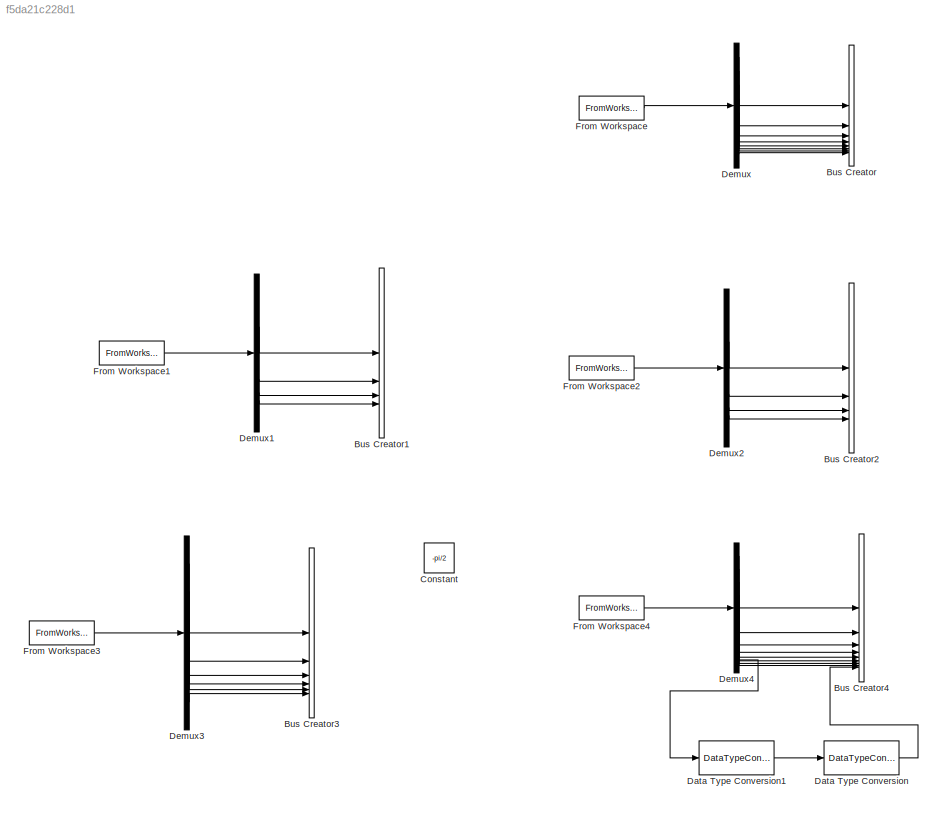
MODEL slx_f5da21c228d1
KIND model
CONFIG AbsTol = 1e-12
CONFIG EnableMultiTasking = off
CONFIG FixedStep = auto
CONFIG MaxStep = 0.00001
CONFIG MinStep = auto
CONFIG RelTol = 1e-12
CONFIG SampleTimeConstraint = Unconstrained
CONFIG SolverName = ode45
CONFIG StartTime = 0.0
CONFIG StopTime = Sim.time
BLOCK [BusCreator] Bus Creator
  DisplayOption = bar
  InheritFromInputs = off
  Inputs = 8
  OutDataTypeStr = Bus: Coordinate
BLOCK [BusCreator] Bus Creator1
  DisplayOption = bar
  InheritFromInputs = off
  Inputs = 4
  OutDataTypeStr = Bus: Foot
BLOCK [BusCreator] Bus Creator2
  DisplayOption = bar
  InheritFromInputs = off
  Inputs = 4
  OutDataTypeStr = Bus: ConstraintForces
BLOCK [BusCreator] Bus Creator3
  DisplayOption = bar
  InheritFromInputs = off
  Inputs = 6
  OutDataTypeStr = Bus: Accel
BLOCK [BusCreator] Bus Creator4
  DisplayOption = bar
  InheritFromInputs = off
  Inputs = 9
  OutDataTypeStr = Bus: Cmd
BLOCK [Constant] Constant
  Value = -pi/2
BLOCK [DataTypeConversion] Data Type Conversion
  OutDataTypeStr = Enum: States
  RndMeth = Floor
  SaturateOnIntegerOverflow = off
BLOCK [DataTypeConversion] Data Type Conversion1
  OutDataTypeStr = int16
  RndMeth = Floor
  SaturateOnIntegerOverflow = off
BLOCK [Demux] Demux
  Outputs = 8
BLOCK [Demux] Demux1
BLOCK [Demux] Demux2
BLOCK [Demux] Demux3
  Outputs = 6
BLOCK [Demux] Demux4
  Outputs = 9
BLOCK [FromWorkspace] From Workspace
  VariableName = coords_sols
BLOCK [FromWorkspace] From Workspace1
  VariableName = foot_sols
BLOCK [FromWorkspace] From Workspace2
  VariableName = constraint_forces_sols
BLOCK [FromWorkspace] From Workspace3
  VariableName = accel_sols
BLOCK [FromWorkspace] From Workspace4
  VariableName = cmd_sols
LINE Data Type Conversion1:1 -> Data Type Conversion:1
LINE Data Type Conversion:1 -> Bus Creator4:9
LINE Demux1:1 -> Bus Creator1:1
LINE Demux1:2 -> Bus Creator1:2
LINE Demux1:3 -> Bus Creator1:3
LINE Demux1:4 -> Bus Creator1:4
LINE Demux2:1 -> Bus Creator2:1
LINE Demux2:2 -> Bus Creator2:2
LINE Demux2:3 -> Bus Creator2:3
LINE Demux2:4 -> Bus Creator2:4
LINE Demux3:1 -> Bus Creator3:1
LINE Demux3:2 -> Bus Creator3:2
LINE Demux3:3 -> Bus Creator3:3
LINE Demux3:4 -> Bus Creator3:4
LINE Demux3:5 -> Bus Creator3:5
LINE Demux3:6 -> Bus Creator3:6
LINE Demux4:1 -> Bus Creator4:1
LINE Demux4:2 -> Bus Creator4:2
LINE Demux4:3 -> Bus Creator4:3
LINE Demux4:4 -> Bus Creator4:4
LINE Demux4:5 -> Bus Creator4:5
LINE Demux4:6 -> Bus Creator4:6
LINE Demux4:7 -> Bus Creator4:7
LINE Demux4:8 -> Bus Creator4:8
LINE Demux4:9 -> Data Type Conversion1:1
LINE Demux:1 -> Bus Creator:1
LINE Demux:2 -> Bus Creator:2
LINE Demux:3 -> Bus Creator:3
LINE Demux:4 -> Bus Creator:4
LINE Demux:5 -> Bus Creator:5
LINE Demux:6 -> Bus Creator:6
LINE Demux:7 -> Bus Creator:7
LINE Demux:8 -> Bus Creator:8
LINE From Workspace1:1 -> Demux1:1
LINE From Workspace2:1 -> Demux2:1
LINE From Workspace3:1 -> Demux3:1
LINE From Workspace4:1 -> Demux4:1
LINE From Workspace:1 -> Demux:1
